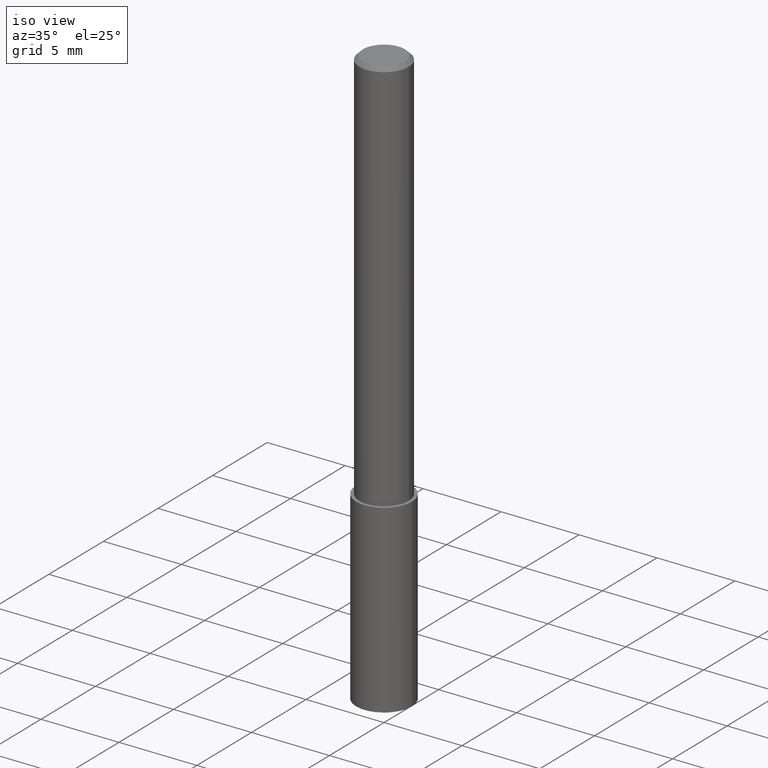
[diagram: clean part render]
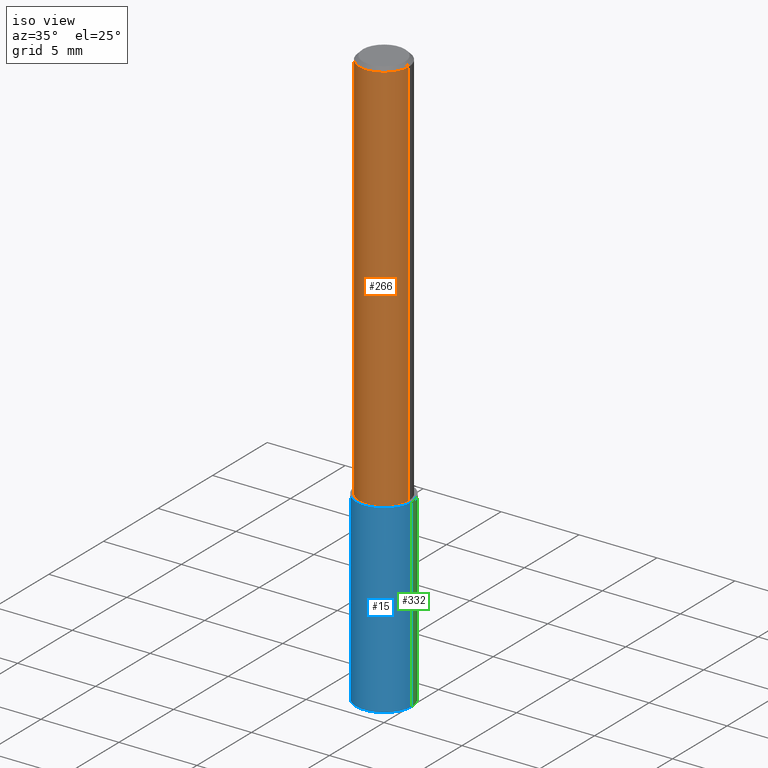
[diagram: same view with three faces highlighted in distinct colors, each labeled with its STEP entity id]
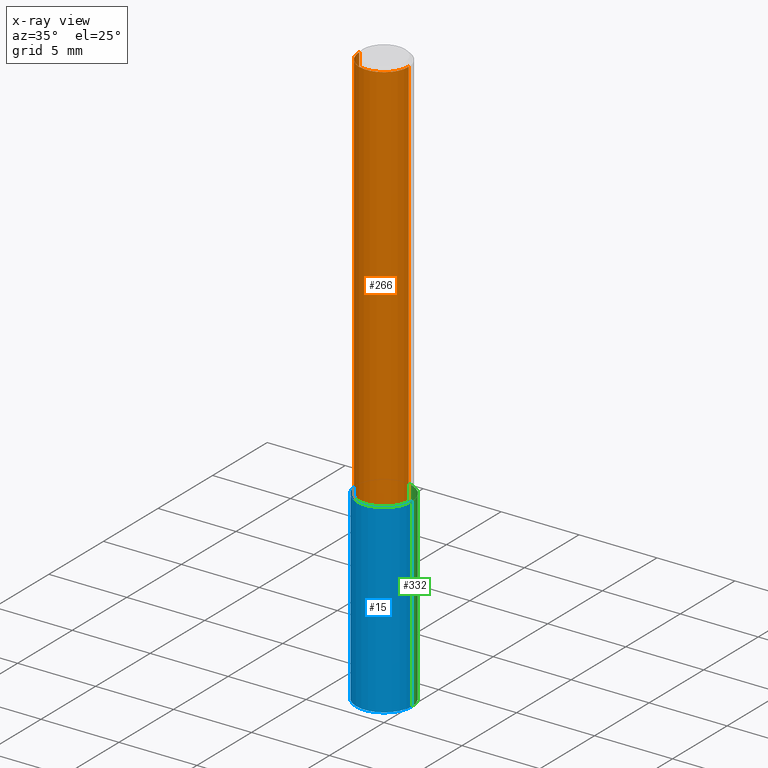
[diagram: x-ray of the same camera — body ghosted, the three highlighted faces saturated]
A machine part, iso view with three faces highlighted in distinct colors.
The next image is the same camera in x-ray (body ghosted, the three faces saturated) — at least one of them is partly hidden behind the body in this view.
Their STEP definitions:

[orange] entity #266 — the highlighted cylindrical surface (edge-blend (fillet) strip) has radius 1.5875 mm, axis along (-0, 0, 1).
#7 = DIRECTION ( 'NONE',  ( -2.445468806185136877E-29, 3.491481338843145188E-15, 1.000000000000000000 ) ) ;
#8 = VERTEX_POINT ( 'NONE', #278 ) ;
#10 = VERTEX_POINT ( 'NONE', #34 ) ;
#18 = AXIS2_PLACEMENT_3D ( 'NONE', #261, #211, #264 ) ;
#28 = CIRCLE ( 'NONE', #18, 0.06250000000000000000 ) ;
#32 = LINE ( 'NONE', #339, #288 ) ;
#34 = CARTESIAN_POINT ( 'NONE',  ( 0.06250000000000012490, -3.927916506198539224E-15, -1.000000000000000222 ) ) ;
#38 = ORIENTED_EDGE ( 'NONE', *, *, #100, .T. ) ;
#67 = ORIENTED_EDGE ( 'NONE', *, *, #160, .T. ) ;
#82 = FACE_OUTER_BOUND ( 'NONE', #140, .T. ) ;
#89 = CARTESIAN_POINT ( 'NONE',  ( 0.000000000000000000, 0.000000000000000000, 0.000000000000000000 ) ) ;
#93 = ORIENTED_EDGE ( 'NONE', *, *, #219, .F. ) ;
#100 = EDGE_CURVE ( 'NONE', #10, #322, #158, .T. ) ;
#101 = CARTESIAN_POINT ( 'NONE',  ( 0.06250000000000000000, -4.691678049070464390E-16, -0.009375000000000069042 ) ) ;
#104 = CARTESIAN_POINT ( 'NONE',  ( 2.445468806185137438E-29, -3.491481338843146371E-15, -1.000000000000000222 ) ) ;
#114 = CYLINDRICAL_SURFACE ( 'NONE', #327, 0.06250000000000006939 ) ;
#115 = ORIENTED_EDGE ( 'NONE', *, *, #204, .F. ) ;
#130 = CARTESIAN_POINT ( 'NONE',  ( 0.06250000000000006939, -4.364351673553921624E-16, 3.047610484872463374E-30 ) ) ;
#140 = EDGE_LOOP ( 'NONE', ( #115, #67, #38, #93 ) ) ;
#158 = LINE ( 'NONE', #130, #173 ) ;
#160 = EDGE_CURVE ( 'NONE', #8, #10, #249, .T. ) ;
#173 = VECTOR ( 'NONE', #177, 39.37007874015748143 ) ;
#177 = DIRECTION ( 'NONE',  ( -2.445468806185136877E-29, 3.491481338843145188E-15, 1.000000000000000000 ) ) ;
#180 = DIRECTION ( 'NONE',  ( -2.445468806185136597E-29, 3.491481338843145583E-15, 1.000000000000000000 ) ) ;
#189 = DIRECTION ( 'NONE',  ( -2.445468806185136597E-29, 3.491481338843145583E-15, 1.000000000000000000 ) ) ;
#196 = AXIS2_PLACEMENT_3D ( 'NONE', #104, #180, #234 ) ;
#204 = EDGE_CURVE ( 'NONE', #8, #325, #32, .T. ) ;
#211 = DIRECTION ( 'NONE',  ( -2.445468806185136597E-29, 3.491481338843145583E-15, 1.000000000000000000 ) ) ;
#219 = EDGE_CURVE ( 'NONE', #325, #322, #28, .T. ) ;
#234 = DIRECTION ( 'NONE',  ( 1.000000000000000000, -6.982962677686264344E-15, 0.000000000000000000 ) ) ;
#249 = CIRCLE ( 'NONE', #196, 0.06250000000000012490 ) ;
#261 = CARTESIAN_POINT ( 'NONE',  ( 2.292627005798582375E-31, -3.273263755165473266E-17, -0.009375000000000069042 ) ) ;
#264 = DIRECTION ( 'NONE',  ( 1.000000000000000000, -6.982962677686266711E-15, 0.000000000000000000 ) ) ;
#266 = ADVANCED_FACE ( 'NONE', ( #82 ), #114, .T. ) ;
#278 = CARTESIAN_POINT ( 'NONE',  ( -0.06250000000000012490, -1.318017778347335489E-15, -1.000000000000000222 ) ) ;
#288 = VECTOR ( 'NONE', #7, 39.37007874015748143 ) ;
#292 = DIRECTION ( 'NONE',  ( 1.000000000000000000, -6.982962677686266711E-15, 4.876176775795935793E-29 ) ) ;
#305 = CARTESIAN_POINT ( 'NONE',  ( -0.06250000000000000000, -1.318017778347336672E-15, -0.009375000000000069042 ) ) ;
#322 = VERTEX_POINT ( 'NONE', #101 ) ;
#325 = VERTEX_POINT ( 'NONE', #305 ) ;
#327 = AXIS2_PLACEMENT_3D ( 'NONE', #89, #189, #292 ) ;
#339 = CARTESIAN_POINT ( 'NONE',  ( -0.06250000000000006939, 4.440892098500631092E-16, -3.074334431409319267E-30 ) ) ;

[blue] entity #15 — the highlighted cylindrical surface (edge-blend (fillet) strip) has radius 1.7856 mm, axis along (-0, 0, 1).
#4 = AXIS2_PLACEMENT_3D ( 'NONE', #227, #20, #202 ) ;
#15 = ADVANCED_FACE ( 'NONE', ( #220 ), #141, .T. ) ;
#16 = CARTESIAN_POINT ( 'NONE',  ( 2.445468806185137438E-29, -3.491481338843146371E-15, -1.000000000000000222 ) ) ;
#19 = EDGE_CURVE ( 'NONE', #41, #88, #302, .T. ) ;
#20 = DIRECTION ( 'NONE',  ( -2.445468806185136597E-29, 3.491481338843145583E-15, 1.000000000000000000 ) ) ;
#33 = ORIENTED_EDGE ( 'NONE', *, *, #19, .T. ) ;
#41 = VERTEX_POINT ( 'NONE', #107 ) ;
#42 = CARTESIAN_POINT ( 'NONE',  ( 0.07030000000000000138, -3.982383615084490924E-15, -1.000000000000000222 ) ) ;
#66 = VERTEX_POINT ( 'NONE', #209 ) ;
#76 = DIRECTION ( 'NONE',  ( 1.000000000000000000, -6.982962677686265133E-15, 0.000000000000000000 ) ) ;
#80 = DIRECTION ( 'NONE',  ( -2.445468806185136877E-29, 3.491481338843145188E-15, 1.000000000000000000 ) ) ;
#83 = ORIENTED_EDGE ( 'NONE', *, *, #212, .F. ) ;
#86 = DIRECTION ( 'NONE',  ( -2.445468806185136597E-29, 3.491481338843145583E-15, 1.000000000000000000 ) ) ;
#88 = VERTEX_POINT ( 'NONE', #253 ) ;
#107 = CARTESIAN_POINT ( 'NONE',  ( -0.07030000000000000138, -4.623254719616837118E-15, -1.467218571631703661 ) ) ;
#141 = CYLINDRICAL_SURFACE ( 'NONE', #154, 0.07030000000000000138 ) ;
#154 = AXIS2_PLACEMENT_3D ( 'NONE', #16, #291, #76 ) ;
#161 = VECTOR ( 'NONE', #310, 39.37007874015748143 ) ;
#165 = CARTESIAN_POINT ( 'NONE',  ( -0.07030000000000000138, -2.991969795603796128E-15, -1.000000000000000222 ) ) ;
#174 = VECTOR ( 'NONE', #80, 39.37007874015748143 ) ;
#175 = AXIS2_PLACEMENT_3D ( 'NONE', #213, #86, #176 ) ;
#176 = DIRECTION ( 'NONE',  ( 1.000000000000000000, -6.982962677686265133E-15, 0.000000000000000000 ) ) ;
#191 = ORIENTED_EDGE ( 'NONE', *, *, #306, .T. ) ;
#202 = DIRECTION ( 'NONE',  ( 1.000000000000000000, -6.982962677686265133E-15, 0.000000000000000000 ) ) ;
#209 = CARTESIAN_POINT ( 'NONE',  ( 0.07030000000000000138, -3.982383615084490136E-15, -1.000000000000000222 ) ) ;
#212 = EDGE_CURVE ( 'NONE', #41, #217, #215, .T. ) ;
#213 = CARTESIAN_POINT ( 'NONE',  ( 2.445468806185136877E-29, -3.491481338843145977E-15, -1.000000000000000222 ) ) ;
#215 = LINE ( 'NONE', #165, #174 ) ;
#217 = VERTEX_POINT ( 'NONE', #321 ) ;
#220 = FACE_OUTER_BOUND ( 'NONE', #238, .T. ) ;
#223 = CIRCLE ( 'NONE', #175, 0.07030000000000000138 ) ;
#227 = CARTESIAN_POINT ( 'NONE',  ( 3.588037248780843606E-29, -5.122766262856188544E-15, -1.467218571631703661 ) ) ;
#238 = EDGE_LOOP ( 'NONE', ( #83, #33, #191, #276 ) ) ;
#253 = CARTESIAN_POINT ( 'NONE',  ( 0.07030000000000000138, -5.613668539097532703E-15, -1.467218571631703661 ) ) ;
#276 = ORIENTED_EDGE ( 'NONE', *, *, #300, .F. ) ;
#291 = DIRECTION ( 'NONE',  ( -2.445468806185136597E-29, 3.491481338843145583E-15, 1.000000000000000000 ) ) ;
#300 = EDGE_CURVE ( 'NONE', #217, #66, #223, .T. ) ;
#302 = CIRCLE ( 'NONE', #4, 0.07030000000000000138 ) ;
#306 = EDGE_CURVE ( 'NONE', #88, #66, #335, .T. ) ;
#310 = DIRECTION ( 'NONE',  ( -2.445468806185136877E-29, 3.491481338843145188E-15, 1.000000000000000000 ) ) ;
#321 = CARTESIAN_POINT ( 'NONE',  ( -0.07030000000000000138, -3.807612257610317017E-15, -1.000000000000000222 ) ) ;
#335 = LINE ( 'NONE', #42, #161 ) ;

[green] entity #332 — the highlighted cylindrical surface (edge-blend (fillet) strip) has radius 1.7856 mm, axis along (-0, 0, 1).
#23 = DIRECTION ( 'NONE',  ( -2.445468806185136597E-29, 3.491481338843145583E-15, 1.000000000000000000 ) ) ;
#29 = DIRECTION ( 'NONE',  ( 1.000000000000000000, -6.982962677686265133E-15, 0.000000000000000000 ) ) ;
#41 = VERTEX_POINT ( 'NONE', #107 ) ;
#42 = CARTESIAN_POINT ( 'NONE',  ( 0.07030000000000000138, -3.982383615084490924E-15, -1.000000000000000222 ) ) ;
#56 = DIRECTION ( 'NONE',  ( -2.445468806185136597E-29, 3.491481338843145583E-15, 1.000000000000000000 ) ) ;
#61 = EDGE_CURVE ( 'NONE', #66, #217, #142, .T. ) ;
#66 = VERTEX_POINT ( 'NONE', #209 ) ;
#68 = AXIS2_PLACEMENT_3D ( 'NONE', #178, #73, #222 ) ;
#70 = DIRECTION ( 'NONE',  ( 1.000000000000000000, -6.982962677686265133E-15, 0.000000000000000000 ) ) ;
#73 = DIRECTION ( 'NONE',  ( -2.445468806185136597E-29, 3.491481338843145583E-15, 1.000000000000000000 ) ) ;
#80 = DIRECTION ( 'NONE',  ( -2.445468806185136877E-29, 3.491481338843145188E-15, 1.000000000000000000 ) ) ;
#88 = VERTEX_POINT ( 'NONE', #253 ) ;
#107 = CARTESIAN_POINT ( 'NONE',  ( -0.07030000000000000138, -4.623254719616837118E-15, -1.467218571631703661 ) ) ;
#118 = ORIENTED_EDGE ( 'NONE', *, *, #212, .T. ) ;
#125 = FACE_OUTER_BOUND ( 'NONE', #171, .T. ) ;
#136 = AXIS2_PLACEMENT_3D ( 'NONE', #188, #23, #70 ) ;
#142 = CIRCLE ( 'NONE', #136, 0.07030000000000000138 ) ;
#161 = VECTOR ( 'NONE', #310, 39.37007874015748143 ) ;
#165 = CARTESIAN_POINT ( 'NONE',  ( -0.07030000000000000138, -2.991969795603796128E-15, -1.000000000000000222 ) ) ;
#171 = EDGE_LOOP ( 'NONE', ( #195, #118, #199, #243 ) ) ;
#174 = VECTOR ( 'NONE', #80, 39.37007874015748143 ) ;
#178 = CARTESIAN_POINT ( 'NONE',  ( 2.445468806185137438E-29, -3.491481338843146371E-15, -1.000000000000000222 ) ) ;
#188 = CARTESIAN_POINT ( 'NONE',  ( 2.445468806185136877E-29, -3.491481338843145977E-15, -1.000000000000000222 ) ) ;
#192 = CARTESIAN_POINT ( 'NONE',  ( 3.588037248780843606E-29, -5.122766262856188544E-15, -1.467218571631703661 ) ) ;
#195 = ORIENTED_EDGE ( 'NONE', *, *, #277, .T. ) ;
#199 = ORIENTED_EDGE ( 'NONE', *, *, #61, .F. ) ;
#209 = CARTESIAN_POINT ( 'NONE',  ( 0.07030000000000000138, -3.982383615084490136E-15, -1.000000000000000222 ) ) ;
#212 = EDGE_CURVE ( 'NONE', #41, #217, #215, .T. ) ;
#215 = LINE ( 'NONE', #165, #174 ) ;
#217 = VERTEX_POINT ( 'NONE', #321 ) ;
#222 = DIRECTION ( 'NONE',  ( 1.000000000000000000, -6.982962677686265133E-15, 0.000000000000000000 ) ) ;
#243 = ORIENTED_EDGE ( 'NONE', *, *, #306, .F. ) ;
#253 = CARTESIAN_POINT ( 'NONE',  ( 0.07030000000000000138, -5.613668539097532703E-15, -1.467218571631703661 ) ) ;
#277 = EDGE_CURVE ( 'NONE', #88, #41, #307, .T. ) ;
#304 = AXIS2_PLACEMENT_3D ( 'NONE', #192, #56, #29 ) ;
#306 = EDGE_CURVE ( 'NONE', #88, #66, #335, .T. ) ;
#307 = CIRCLE ( 'NONE', #304, 0.07030000000000000138 ) ;
#310 = DIRECTION ( 'NONE',  ( -2.445468806185136877E-29, 3.491481338843145188E-15, 1.000000000000000000 ) ) ;
#321 = CARTESIAN_POINT ( 'NONE',  ( -0.07030000000000000138, -3.807612257610317017E-15, -1.000000000000000222 ) ) ;
#331 = CYLINDRICAL_SURFACE ( 'NONE', #68, 0.07030000000000000138 ) ;
#332 = ADVANCED_FACE ( 'NONE', ( #125 ), #331, .T. ) ;
#335 = LINE ( 'NONE', #42, #161 ) ;